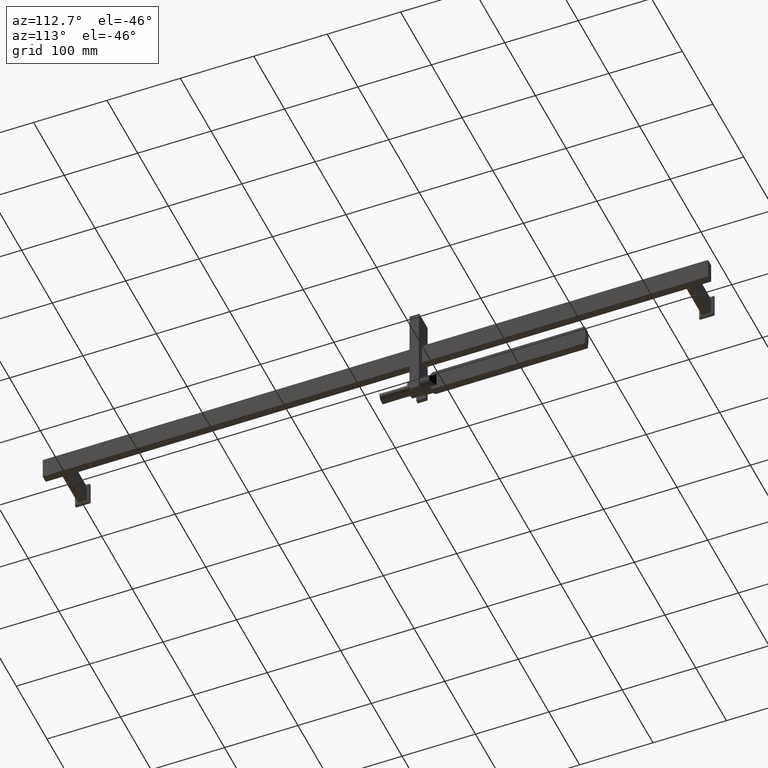
[diagram: clean part render]
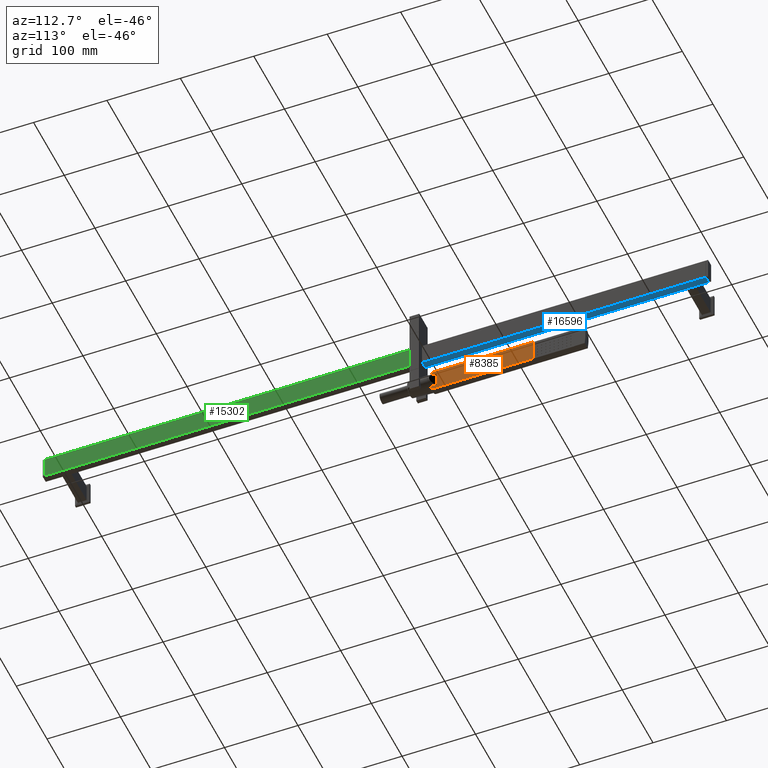
[diagram: same view with three faces highlighted in distinct colors, each labeled with its STEP entity id]
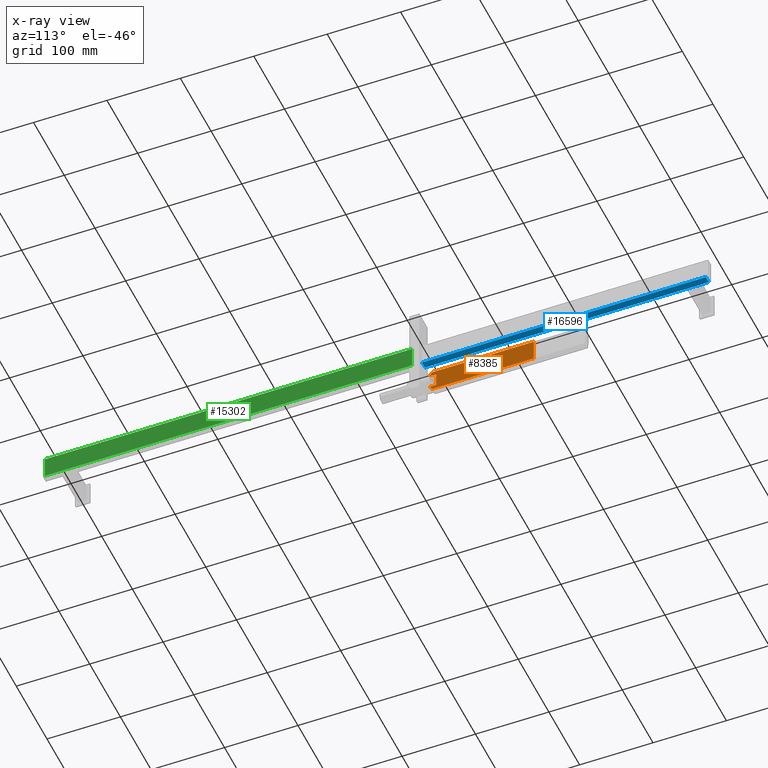
[diagram: x-ray of the same camera — body ghosted, the three highlighted faces saturated]
A machine part, auxiliary view with three faces highlighted in distinct colors.
The next image is the same camera in x-ray (body ghosted, the three faces saturated) — at least one of them is partly hidden behind the body in this view.
Their STEP definitions:

[orange] entity #8385 — the highlighted planar face has unit normal (-1, 0, 0).
#845=DIRECTION('',(1.065814103668E-14,1.E0,-5.451639140263E-11));
#846=VECTOR('',#845,7.999999999789E0);
#847=CARTESIAN_POINT('',(6.5E1,7.52E1,-4.332217781421E1));
#848=LINE('',#847,#846);
#880=DIRECTION('',(0.E0,-1.E0,8.483828210563E-13));
#881=VECTOR('',#880,1.365E2);
#882=CARTESIAN_POINT('',(6.5E1,2.157E2,-6.84E1));
#883=LINE('',#882,#881);
#884=CARTESIAN_POINT('',(6.5E1,7.92E1,-6.44E1));
#885=DIRECTION('',(-1.E0,0.E0,0.E0));
#886=DIRECTION('',(0.E0,4.263256414932E-14,-1.E0));
#887=AXIS2_PLACEMENT_3D('',#884,#885,#886);
#889=DIRECTION('',(-6.124878382342E-12,1.E0,1.476685440615E-11));
#890=VECTOR('',#889,7.999999999883E0);
#891=CARTESIAN_POINT('',(6.500000000005E1,7.52E1,-6.347782218522E1));
#892=LINE('',#891,#890);
#893=CARTESIAN_POINT('',(6.5E1,7.92E1,-4.24E1));
#894=DIRECTION('',(-1.E0,0.E0,0.E0));
#895=DIRECTION('',(0.E0,-1.E0,1.136868377114E-13));
#896=AXIS2_PLACEMENT_3D('',#893,#894,#895);
#898=DIRECTION('',(0.E0,1.E0,-8.773250746154E-13));
#899=VECTOR('',#898,1.365E2);
#900=CARTESIAN_POINT('',(6.5E1,7.92E1,-3.839999999988E1));
#901=LINE('',#900,#899);
#902=DIRECTION('',(0.E0,0.E0,-1.E0));
#903=VECTOR('',#902,3.E1);
#904=CARTESIAN_POINT('',(6.5E1,2.157E2,-3.84E1));
#905=LINE('',#904,#903);
#4008=DIRECTION('',(-5.353478809641E-11,1.260702652322E-10,-1.E0));
#4009=VECTOR('',#4008,9.221762341098E-1);
#4010=CARTESIAN_POINT('',(6.500000000005E1,7.52E1,-6.347782218522E1));
#4011=LINE('',#4010,#4009);
#4012=DIRECTION('',(2.044661927777E-14,4.632921906007E-12,-1.E0));
#4013=VECTOR('',#4012,2.015564437046E1);
#4014=CARTESIAN_POINT('',(6.5E1,8.319999999979E1,-4.332217781465E1));
#4015=LINE('',#4014,#4013);
#4020=DIRECTION('',(-1.232809262839E-13,1.297685850296E-10,-1.E0));
#4021=VECTOR('',#4020,9.221770240421E-1);
#4022=CARTESIAN_POINT('',(6.5E1,7.519999999988E1,-4.240000079017E1));
#4023=LINE('',#4022,#4021);
#5702=CARTESIAN_POINT('',(6.5E1,7.519999999988E1,-4.240000079017E1));
#5704=VERTEX_POINT('',#5702);
#5709=CARTESIAN_POINT('',(6.5E1,7.92E1,-3.839999999988E1));
#5711=VERTEX_POINT('',#5709);
#5713=CARTESIAN_POINT('',(6.5E1,7.52E1,-4.332217781421E1));
#5714=VERTEX_POINT('',#5713);
#5944=CARTESIAN_POINT('',(6.5E1,7.520000000012E1,-6.439999841933E1));
#5946=VERTEX_POINT('',#5944);
#5949=CARTESIAN_POINT('',(6.5E1,7.92E1,-6.839999999988E1));
#5951=VERTEX_POINT('',#5949);
#5954=CARTESIAN_POINT('',(6.500000000005E1,7.52E1,-6.347782218522E1));
#5955=VERTEX_POINT('',#5954);
#6678=CARTESIAN_POINT('',(6.5E1,2.157E2,-3.84E1));
#6679=CARTESIAN_POINT('',(6.5E1,2.157E2,-6.84E1));
#6680=VERTEX_POINT('',#6678);
#6681=VERTEX_POINT('',#6679);
#6698=CARTESIAN_POINT('',(6.5E1,8.319999999979E1,-4.332217781465E1));
#6699=CARTESIAN_POINT('',(6.5E1,8.319999999988E1,-6.347782218511E1));
#6700=VERTEX_POINT('',#6698);
#6701=VERTEX_POINT('',#6699);
#8361=CARTESIAN_POINT('',(6.5E1,7.92E1,-4.086108890700E1));
#8362=DIRECTION('',(-1.E0,0.E0,0.E0));
#8363=DIRECTION('',(0.E0,0.E0,1.E0));
#8364=AXIS2_PLACEMENT_3D('',#8361,#8362,#8363);
#8365=PLANE('',#8364);
#8367=ORIENTED_EDGE('',*,*,#8366,.T.);
#8369=ORIENTED_EDGE('',*,*,#8368,.T.);
#8371=ORIENTED_EDGE('',*,*,#8370,.F.);
#8372=ORIENTED_EDGE('',*,*,#8317,.T.);
#8374=ORIENTED_EDGE('',*,*,#8373,.F.);
#8375=ORIENTED_EDGE('',*,*,#8313,.F.);
#8377=ORIENTED_EDGE('',*,*,#8376,.F.);
#8378=ORIENTED_EDGE('',*,*,#8339,.T.);
#8380=ORIENTED_EDGE('',*,*,#8379,.T.);
#8382=ORIENTED_EDGE('',*,*,#8381,.T.);
#8383=EDGE_LOOP('',(#8367,#8369,#8371,#8372,#8374,#8375,#8377,#8378,#8380,
#8382));
#8384=FACE_OUTER_BOUND('',#8383,.F.);
#8385=ADVANCED_FACE('',(#8384),#8365,.F.);
#888=CIRCLE('',#887,3.999999999652E0);
#897=CIRCLE('',#896,4.000000000359E0);
#8313=EDGE_CURVE('',#5714,#6700,#848,.T.);
#8317=EDGE_CURVE('',#5955,#6701,#892,.T.);
#8339=EDGE_CURVE('',#5704,#5711,#897,.T.);
#8366=EDGE_CURVE('',#6681,#5951,#883,.T.);
#8368=EDGE_CURVE('',#5951,#5946,#888,.T.);
#8370=EDGE_CURVE('',#5955,#5946,#4011,.T.);
#8373=EDGE_CURVE('',#6700,#6701,#4015,.T.);
#8376=EDGE_CURVE('',#5704,#5714,#4023,.T.);
#8379=EDGE_CURVE('',#5711,#6680,#901,.T.);
#8381=EDGE_CURVE('',#6680,#6681,#905,.T.);

[blue] entity #16596 — the highlighted planar face has unit normal (0, 0, 1).
#95=DIRECTION('',(-1.E0,0.E0,0.E0));
#96=VECTOR('',#95,9.6E0);
#97=CARTESIAN_POINT('',(6.48E1,6.35E1,-1.5E1));
#98=LINE('',#97,#96);
#4869=DIRECTION('',(0.E0,-1.E0,0.E0));
#4870=VECTOR('',#4869,3.865E2);
#4871=CARTESIAN_POINT('',(6.48E1,4.5E2,-1.5E1));
#4872=LINE('',#4871,#4870);
#4915=DIRECTION('',(1.E0,0.E0,0.E0));
#4916=VECTOR('',#4915,9.6E0);
#4917=CARTESIAN_POINT('',(5.52E1,4.5E2,-1.5E1));
#4918=LINE('',#4917,#4916);
#4929=DIRECTION('',(0.E0,1.E0,0.E0));
#4930=VECTOR('',#4929,3.865E2);
#4931=CARTESIAN_POINT('',(5.52E1,6.35E1,-1.5E1));
#4932=LINE('',#4931,#4930);
#5421=CARTESIAN_POINT('',(6.48E1,6.35E1,-1.5E1));
#5422=CARTESIAN_POINT('',(5.52E1,6.35E1,-1.5E1));
#5423=VERTEX_POINT('',#5421);
#5424=VERTEX_POINT('',#5422);
#5497=CARTESIAN_POINT('',(6.48E1,4.5E2,-1.5E1));
#5498=VERTEX_POINT('',#5497);
#5499=CARTESIAN_POINT('',(5.52E1,4.5E2,-1.5E1));
#5500=VERTEX_POINT('',#5499);
#16582=CARTESIAN_POINT('',(0.E0,0.E0,-1.5E1));
#16583=DIRECTION('',(0.E0,0.E0,1.E0));
#16584=DIRECTION('',(1.E0,0.E0,0.E0));
#16585=AXIS2_PLACEMENT_3D('',#16582,#16583,#16584);
#16586=PLANE('',#16585);
#16587=ORIENTED_EDGE('',*,*,#6924,.F.);
#16589=ORIENTED_EDGE('',*,*,#16588,.F.);
#16591=ORIENTED_EDGE('',*,*,#16590,.F.);
#16593=ORIENTED_EDGE('',*,*,#16592,.F.);
#16594=EDGE_LOOP('',(#16587,#16589,#16591,#16593));
#16595=FACE_OUTER_BOUND('',#16594,.F.);
#16596=ADVANCED_FACE('',(#16595),#16586,.F.);
#6924=EDGE_CURVE('',#5423,#5424,#98,.T.);
#16588=EDGE_CURVE('',#5498,#5423,#4872,.T.);
#16590=EDGE_CURVE('',#5500,#5498,#4918,.T.);
#16592=EDGE_CURVE('',#5424,#5500,#4932,.T.);

[green] entity #15302 — the highlighted planar face has unit normal (1, 0, 0).
#4273=DIRECTION('',(0.E0,-1.E0,0.E0));
#4274=VECTOR('',#4273,5.E2);
#4275=CARTESIAN_POINT('',(6.5E1,5.E1,1.48E1));
#4276=LINE('',#4275,#4274);
#4281=DIRECTION('',(0.E0,0.E0,-1.E0));
#4282=VECTOR('',#4281,2.96E1);
#4283=CARTESIAN_POINT('',(6.5E1,5.E1,1.48E1));
#4284=LINE('',#4283,#4282);
#4289=DIRECTION('',(0.E0,1.E0,0.E0));
#4290=VECTOR('',#4289,5.E2);
#4291=CARTESIAN_POINT('',(6.5E1,-4.5E2,-1.48E1));
#4292=LINE('',#4291,#4290);
#4303=DIRECTION('',(0.E0,0.E0,-1.E0));
#4304=VECTOR('',#4303,2.96E1);
#4305=CARTESIAN_POINT('',(6.5E1,-4.5E2,1.48E1));
#4306=LINE('',#4305,#4304);
#5313=CARTESIAN_POINT('',(6.5E1,5.E1,-1.48E1));
#5314=VERTEX_POINT('',#5313);
#5315=CARTESIAN_POINT('',(6.5E1,5.E1,1.48E1));
#5316=VERTEX_POINT('',#5315);
#5505=CARTESIAN_POINT('',(6.5E1,-4.5E2,1.48E1));
#5506=VERTEX_POINT('',#5505);
#5507=CARTESIAN_POINT('',(6.5E1,-4.5E2,-1.48E1));
#5508=VERTEX_POINT('',#5507);
#15289=CARTESIAN_POINT('',(6.5E1,-4.5E2,-1.5E1));
#15290=DIRECTION('',(1.E0,0.E0,0.E0));
#15291=DIRECTION('',(0.E0,1.E0,0.E0));
#15292=AXIS2_PLACEMENT_3D('',#15289,#15290,#15291);
#15293=PLANE('',#15292);
#15294=ORIENTED_EDGE('',*,*,#7049,.T.);
#15296=ORIENTED_EDGE('',*,*,#15295,.F.);
#15298=ORIENTED_EDGE('',*,*,#15297,.F.);
#15299=ORIENTED_EDGE('',*,*,#15274,.F.);
#15300=EDGE_LOOP('',(#15294,#15296,#15298,#15299));
#15301=FACE_OUTER_BOUND('',#15300,.F.);
#15302=ADVANCED_FACE('',(#15301),#15293,.T.);
#7049=EDGE_CURVE('',#5316,#5314,#4284,.T.);
#15274=EDGE_CURVE('',#5316,#5506,#4276,.T.);
#15295=EDGE_CURVE('',#5508,#5314,#4292,.T.);
#15297=EDGE_CURVE('',#5506,#5508,#4306,.T.);